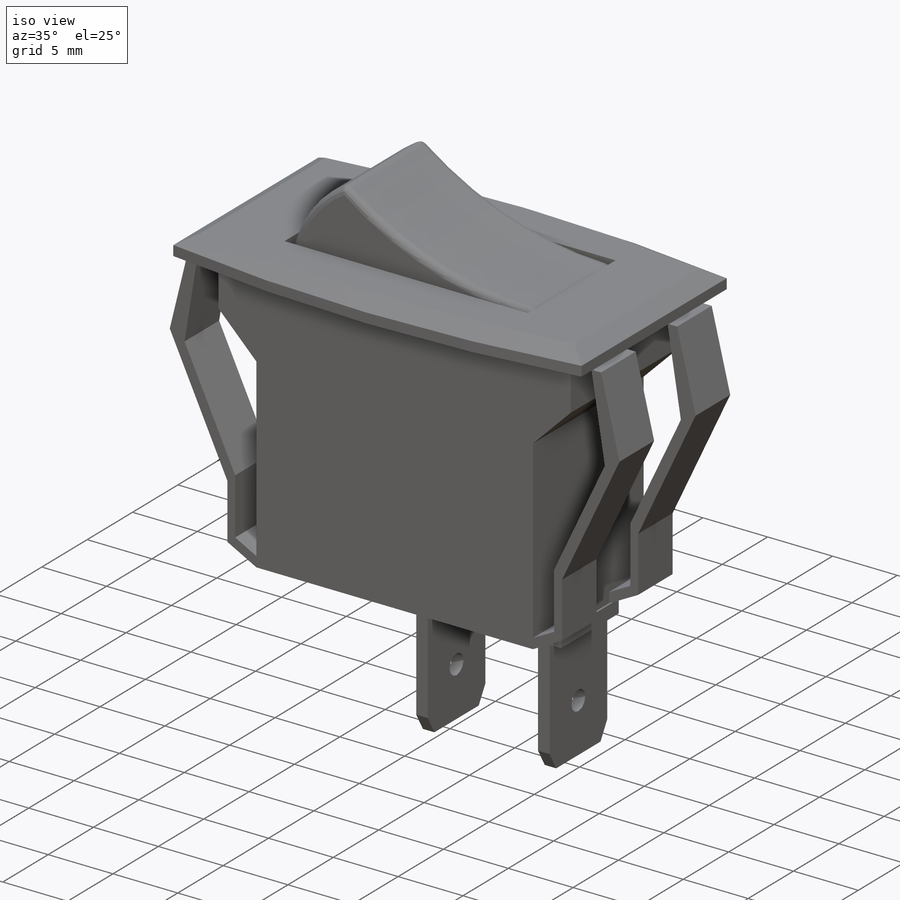
[diagram: iso view]
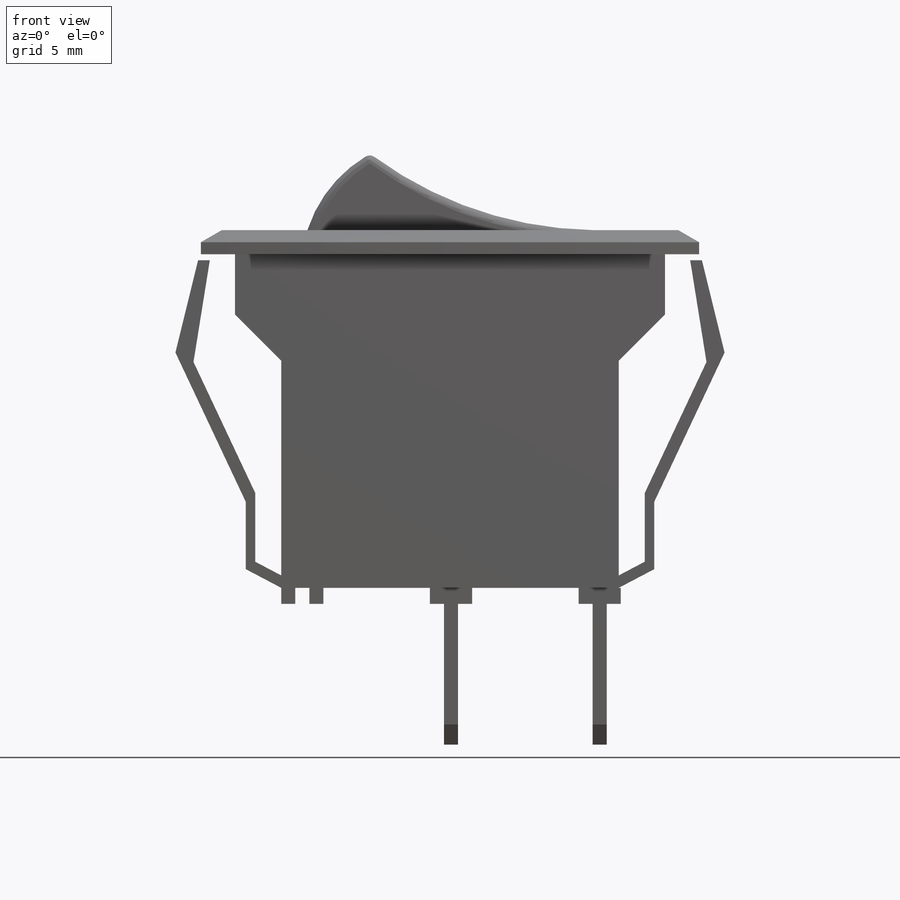
[diagram: front view]
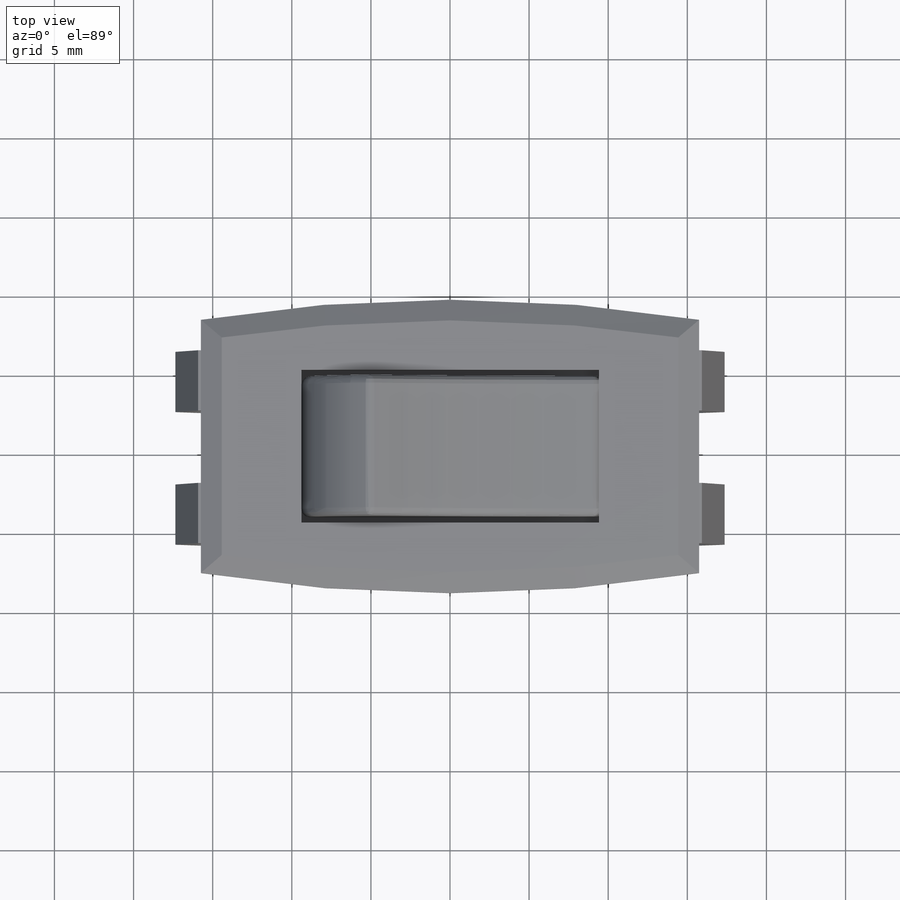
[diagram: top view]
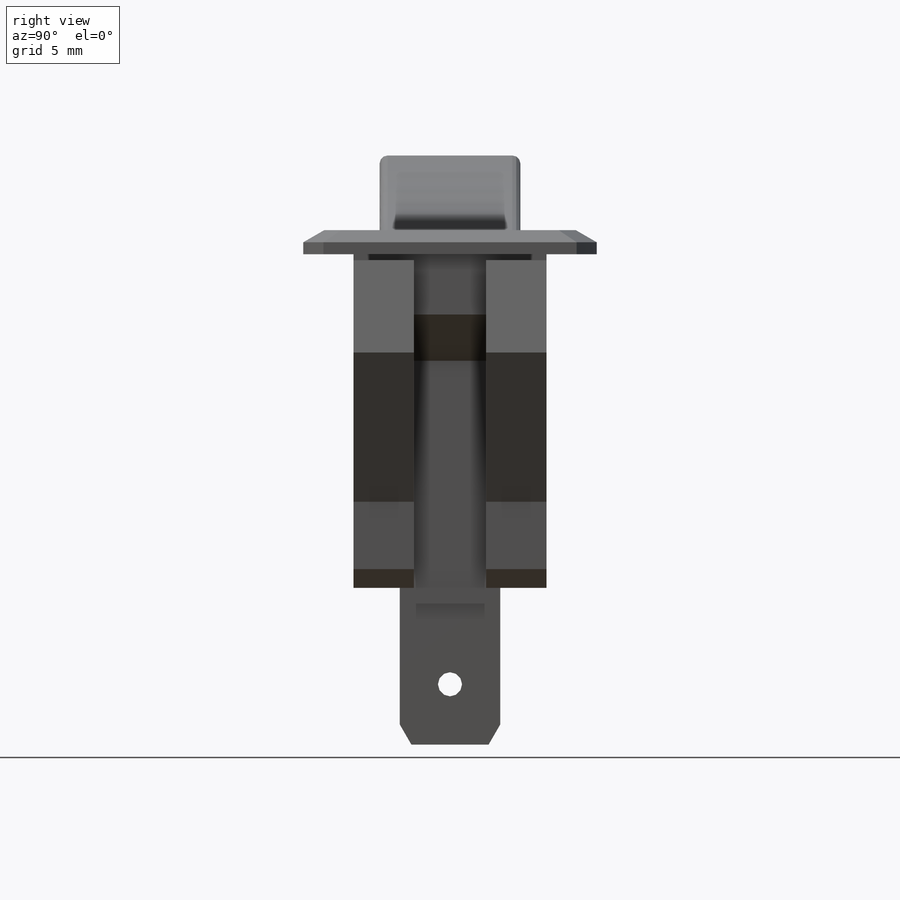
[diagram: right view]
SOLIDWORKS PART (.sldprt)
format: sldprt  version: not decoded by parser v0  size: 440,832 bytes
history: native  units: mm
features: sketch x10, extrude x7, cut_extrude x3, chamfer x2, pattern_linear x2, material x1, mirror x1, fillet x1 (+15 scaffold rows collapsed)
feature tree (42):
  scaffold x15  (default folders/planes/origin — collapsed)
  material  "Material <not specified>"
  sketch  "Sketch1"  dims[c1.D1=15.24mm c1.D2=31.496mm c2.D1=18.542mm c2.D3=1.27mm]
  extrude  "Extrude1"  Depth=1.524mm
  sketch  "Sketch2"  dims[c1.D1=2.54mm c1.D2=5.08mm c2.D1=12.192mm]
  extrude  "Extrude2"  Depth=21.082mm
  chamfer  "Chamfer1"  Distance=0.762mm Angle=60deg
  sketch  "Sketch3"  dims[c1.D1=27.178mm c1.D2=~5.444438mm c2.D2=45.0deg c2.D3=3.81mm]
  extrude  "Extrude3"  Depth=12.192mm
  sketch  "Sketch4"
  extrude  "Extrude4"  Depth=12.192mm
  sketch  "Sketch5"  dims[D1=4.572mm]
  cut_extrude  "Cut-Extrude2"  [1 undecoded]
  mirror  "Mirror1"
  sketch  "Sketch7"  dims[D1=0.889mm D2=6.35mm D3=0.762mm]
  extrude  "Extrude5"  Depth=9.906mm
  sketch  "Sketch8"  dims[D1=1.016mm]
  extrude  "Extrude6"  [1 undecoded]
  chamfer  "Chamfer2"  Distance=1.27mm Angle=30deg
  pattern_linear  "LPattern1"  Count1=3 Count2=1 Spacing1=9.398mm Spacing2=50mm
  pattern_linear  "LPattern2"  Count1=2 Count2=1 Spacing1=9.398mm Spacing2=50mm
  sketch  "Sketch9"  dims[D1=1.524mm D2=3.81mm]
  cut_extrude  "Cut-Extrude3"  [1 undecoded]
  sketch  "Sketch10"  dims[D1=1.27mm D2=1.27mm]
  cut_extrude  "Cut-Extrude4"  Depth=2.54mm
  sketch  "Sketch11"  dims[D1=4.826mm]
  extrude  "Extrude7"  Depth=8.89mm
  fillet  "Fillet1"  Radius=0.508mm
decode coverage: 21 of 26 modeling features carry decoded parameters
note: ~ marks probable driven/reference dimensions
note: 3 parameter values undecoded
summary: no parameter record found for 3 features
note: suppression state not decoded; provenance and decode notes live in map.json
